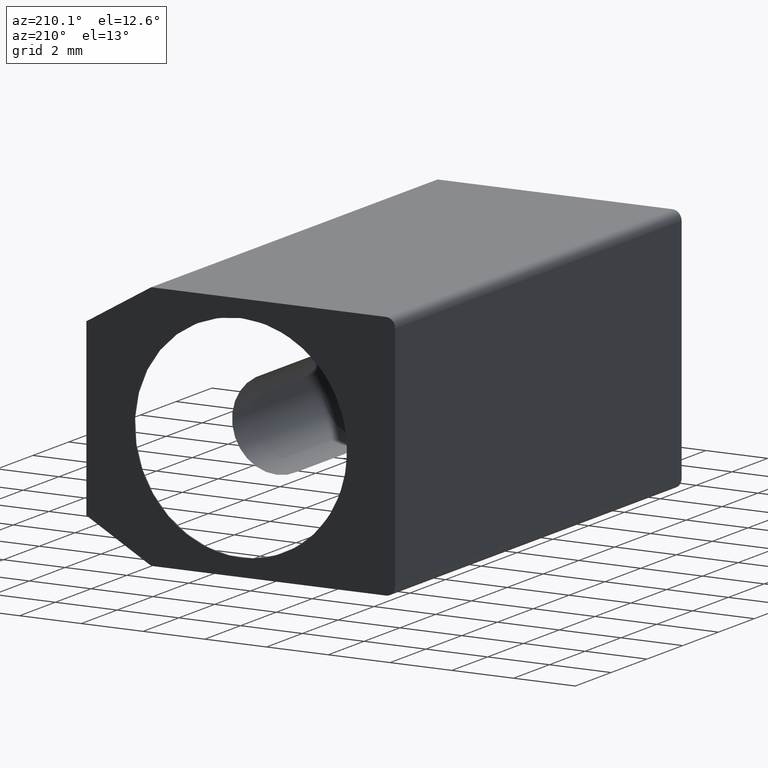
[diagram: clean part render]
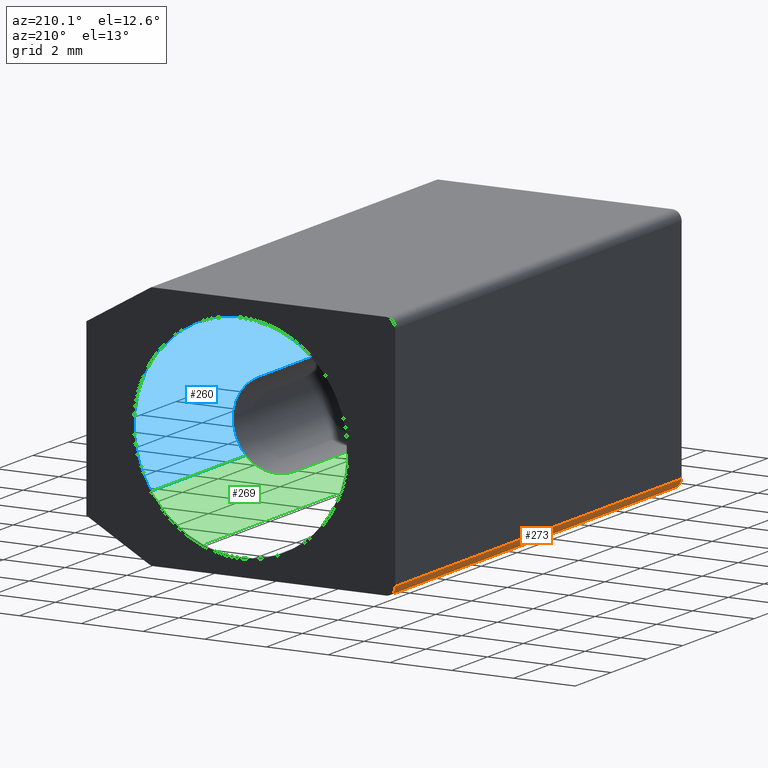
[diagram: same view with three faces highlighted in distinct colors, each labeled with its STEP entity id]
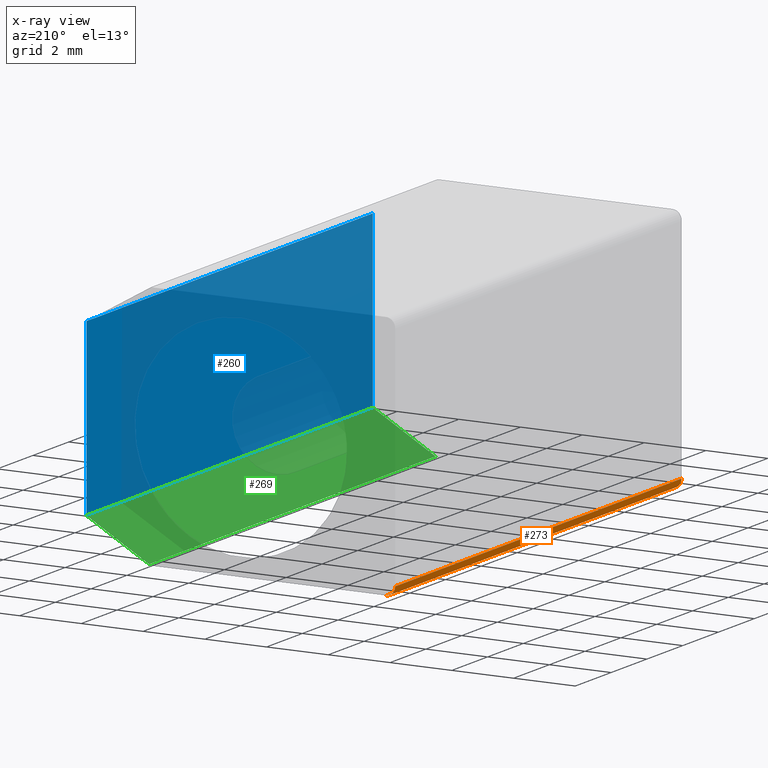
[diagram: x-ray of the same camera — body ghosted, the three highlighted faces saturated]
A machine part, auxiliary view with three faces highlighted in distinct colors.
The next image is the same camera in x-ray (body ghosted, the three faces saturated) — at least one of them is partly hidden behind the body in this view.
Their STEP definitions:

[orange] entity #273 — the highlighted cylindrical surface (edge-blend (fillet) strip) has radius 0.2956 mm, axis along (0, 1, -0).
#21=CYLINDRICAL_SURFACE('',#323,0.2955665022);
#25=CIRCLE('',#302,0.2955665022);
#32=CIRCLE('',#315,0.2955665022);
#48=FACE_OUTER_BOUND('',#65,.T.);
#65=EDGE_LOOP('',(#241,#242,#243,#244));
#92=LINE('',#479,#117);
#93=LINE('',#481,#118);
#117=VECTOR('',#399,9.85221674);
#118=VECTOR('',#402,9.85221674);
#126=VERTEX_POINT('',#424);
#127=VERTEX_POINT('',#426);
#138=VERTEX_POINT('',#459);
#139=VERTEX_POINT('',#461);
#151=EDGE_CURVE('',#126,#127,#25,.T.);
#168=EDGE_CURVE('',#138,#139,#32,.T.);
#177=EDGE_CURVE('',#126,#139,#92,.T.);
#178=EDGE_CURVE('',#127,#138,#93,.T.);
#241=ORIENTED_EDGE('',*,*,#168,.F.);
#242=ORIENTED_EDGE('',*,*,#178,.F.);
#243=ORIENTED_EDGE('',*,*,#151,.F.);
#244=ORIENTED_EDGE('',*,*,#177,.T.);
#273=ADVANCED_FACE('',(#48),#21,.T.);
#302=AXIS2_PLACEMENT_3D('',#427,#341,#342);
#315=AXIS2_PLACEMENT_3D('',#462,#377,#378);
#323=AXIS2_PLACEMENT_3D('',#480,#400,#401);
#341=DIRECTION('center_axis',(-1.77635683940025E-15,-1.,3.53883589099268E-16));
#342=DIRECTION('ref_axis',(-3.88578058618805E-16,-3.53883589099267E-16,
-1.));
#377=DIRECTION('center_axis',(1.77635683940025E-15,1.,-3.53883589099268E-16));
#378=DIRECTION('ref_axis',(-3.88578058618805E-16,-3.53883589099267E-16,
-1.));
#399=DIRECTION('',(1.77635683940025E-15,1.,-3.53883589099268E-16));
#400=DIRECTION('center_axis',(1.77635683940025E-15,1.,-3.53883589099268E-16));
#401=DIRECTION('ref_axis',(-3.88578058618805E-16,-3.53883589099267E-16,
-1.));
#402=DIRECTION('',(1.77635683940025E-15,1.,-3.53883589099268E-16));
#424=CARTESIAN_POINT('',(-14.5758397313175,25.8049562624898,-35.0442257910824));
#426=CARTESIAN_POINT('',(-14.2802732291175,25.8049562624898,-35.3397922932824));
#427=CARTESIAN_POINT('Origin',(-14.2802732291175,25.8049562624898,-35.0442257910824));
#459=CARTESIAN_POINT('',(-14.2802732291175,41.8049562482498,-35.3397922932824));
#461=CARTESIAN_POINT('',(-14.5758397313175,41.8049562482498,-35.0442257910824));
#462=CARTESIAN_POINT('Origin',(-14.2802732291175,41.8049562482498,-35.0442257910824));
#479=CARTESIAN_POINT('',(-14.5758397313175,25.8049562624898,-35.0442257910824));
#480=CARTESIAN_POINT('Origin',(-14.2802732291175,25.8049562624898,-35.0442257910824));
#481=CARTESIAN_POINT('',(-14.2802732291175,25.8049562624898,-35.3397922932824));

[blue] entity #260 — the highlighted planar face has unit normal (-1, 0, 0).
#35=FACE_OUTER_BOUND('',#51,.T.);
#51=EDGE_LOOP('',(#179,#180,#181,#182));
#69=LINE('',#411,#94);
#70=LINE('',#413,#95);
#71=LINE('',#415,#96);
#72=LINE('',#416,#97);
#94=VECTOR('',#330,10.);
#95=VECTOR('',#331,10.);
#96=VECTOR('',#332,10.);
#97=VECTOR('',#333,10.);
#119=VERTEX_POINT('',#409);
#120=VERTEX_POINT('',#410);
#121=VERTEX_POINT('',#412);
#122=VERTEX_POINT('',#414);
#143=EDGE_CURVE('',#119,#120,#69,.T.);
#144=EDGE_CURVE('',#121,#119,#70,.T.);
#145=EDGE_CURVE('',#122,#121,#71,.T.);
#146=EDGE_CURVE('',#120,#122,#72,.T.);
#179=ORIENTED_EDGE('',*,*,#143,.F.);
#180=ORIENTED_EDGE('',*,*,#144,.F.);
#181=ORIENTED_EDGE('',*,*,#145,.F.);
#182=ORIENTED_EDGE('',*,*,#146,.F.);
#251=PLANE('',#299);
#260=ADVANCED_FACE('',(#35),#251,.F.);
#299=AXIS2_PLACEMENT_3D('',#408,#328,#329);
#328=DIRECTION('center_axis',(-1.,1.78098277025459E-15,5.83839535189802E-16));
#329=DIRECTION('ref_axis',(-5.83839535189803E-16,-3.53883589099267E-16,
-1.));
#330=DIRECTION('',(-1.78098277025459E-15,-1.,3.5121280667526E-16));
#331=DIRECTION('',(-5.83839535189803E-16,-3.53883589099267E-16,-1.));
#332=DIRECTION('',(1.78098277025459E-15,1.,-3.56554371523276E-16));
#333=DIRECTION('',(5.83839535189803E-16,3.53883589099267E-16,1.));
#408=CARTESIAN_POINT('Origin',(-4.57583974066249,41.8049562482497,-28.3397922968425));
#409=CARTESIAN_POINT('',(-4.57583974066249,41.8049562482497,-34.1284674292122));
#410=CARTESIAN_POINT('',(-4.57583974066252,25.8049562624897,-34.1284674292122));
#411=CARTESIAN_POINT('',(-4.5758397406625,33.8049562553697,-34.1284674292122));
#412=CARTESIAN_POINT('',(-4.57583974066249,41.8049562482497,-28.5511171644726));
#413=CARTESIAN_POINT('',(-4.57583974066249,41.8049562482497,-29.8397922968424));
#414=CARTESIAN_POINT('',(-4.57583974066251,25.8049562624897,-28.5511171644726));
#415=CARTESIAN_POINT('',(-4.5758397406625,33.8049562553697,-28.5511171644726));
#416=CARTESIAN_POINT('',(-4.57583974066252,25.8049562624897,-29.8397922968424));

[green] entity #269 — the highlighted planar face has unit normal (0.5, -0, -0.866).
#44=FACE_OUTER_BOUND('',#61,.T.);
#61=EDGE_LOOP('',(#225,#226,#227,#228));
#69=LINE('',#411,#94);
#77=LINE('',#432,#102);
#84=LINE('',#456,#109);
#88=LINE('',#471,#113);
#94=VECTOR('',#330,10.);
#102=VECTOR('',#346,9.85221674);
#109=VECTOR('',#373,9.85221674);
#113=VECTOR('',#387,9.85221674);
#119=VERTEX_POINT('',#409);
#120=VERTEX_POINT('',#410);
#129=VERTEX_POINT('',#430);
#136=VERTEX_POINT('',#455);
#143=EDGE_CURVE('',#119,#120,#69,.T.);
#154=EDGE_CURVE('',#129,#120,#77,.T.);
#165=EDGE_CURVE('',#119,#136,#84,.T.);
#173=EDGE_CURVE('',#129,#136,#88,.T.);
#225=ORIENTED_EDGE('',*,*,#143,.T.);
#226=ORIENTED_EDGE('',*,*,#154,.F.);
#227=ORIENTED_EDGE('',*,*,#173,.T.);
#228=ORIENTED_EDGE('',*,*,#165,.F.);
#255=PLANE('',#319);
#269=ADVANCED_FACE('',(#44),#255,.T.);
#319=AXIS2_PLACEMENT_3D('',#473,#389,#390);
#330=DIRECTION('',(-1.78098277025459E-15,-1.,3.5121280667526E-16));
#346=DIRECTION('',(0.866025403784439,-1.36142835455722E-15,0.5));
#373=DIRECTION('',(-0.866025403784439,1.36142835455722E-15,-0.5));
#387=DIRECTION('',(1.77635683940025E-15,1.,-3.53883589099268E-16));
#389=DIRECTION('center_axis',(0.5,-1.1946505978425E-15,-0.866025403784439));
#390=DIRECTION('ref_axis',(-0.866025403784439,1.36142835455722E-15,-0.5));
#409=CARTESIAN_POINT('',(-4.57583974066249,41.8049562482497,-34.1284674292122));
#410=CARTESIAN_POINT('',(-4.57583974066252,25.8049562624897,-34.1284674292122));
#411=CARTESIAN_POINT('',(-4.5758397406625,33.8049562553697,-34.1284674292122));
#430=CARTESIAN_POINT('',(-6.60532950417772,25.8049562624897,-35.3001938904953));
#432=CARTESIAN_POINT('',(-6.13140267920178,25.8049562624897,-35.0265721105192));
#455=CARTESIAN_POINT('',(-6.6053295041777,41.8049562482497,-35.3001938904953));
#456=CARTESIAN_POINT('',(-6.13140267920176,41.8049562482497,-35.0265721105192));
#471=CARTESIAN_POINT('',(-6.60532950417772,25.8049562624897,-35.3001938904953));
#473=CARTESIAN_POINT('Origin',(-4.22362299176252,25.8049562624897,-33.9251149944217));